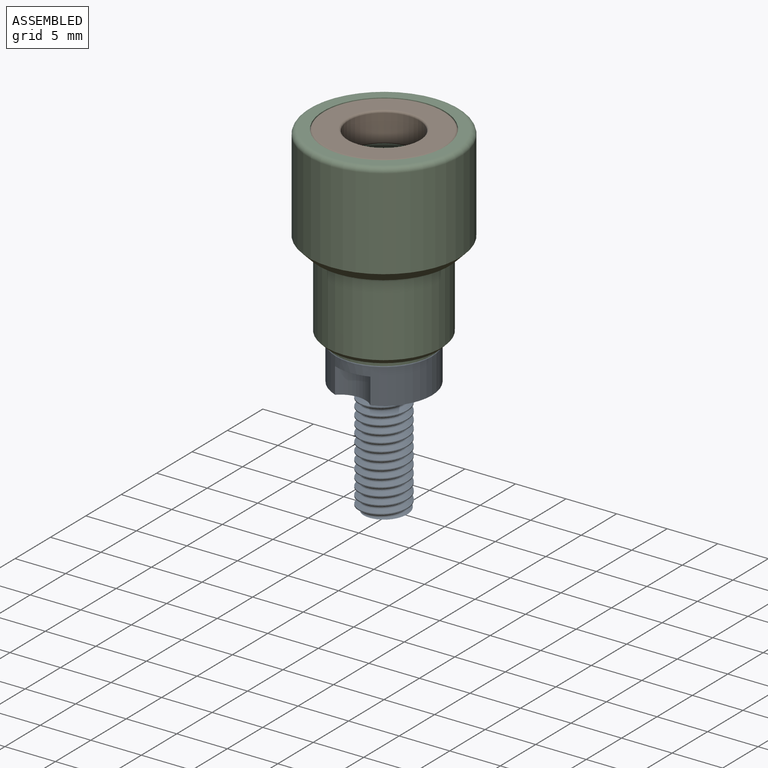
[diagram: assembled view]
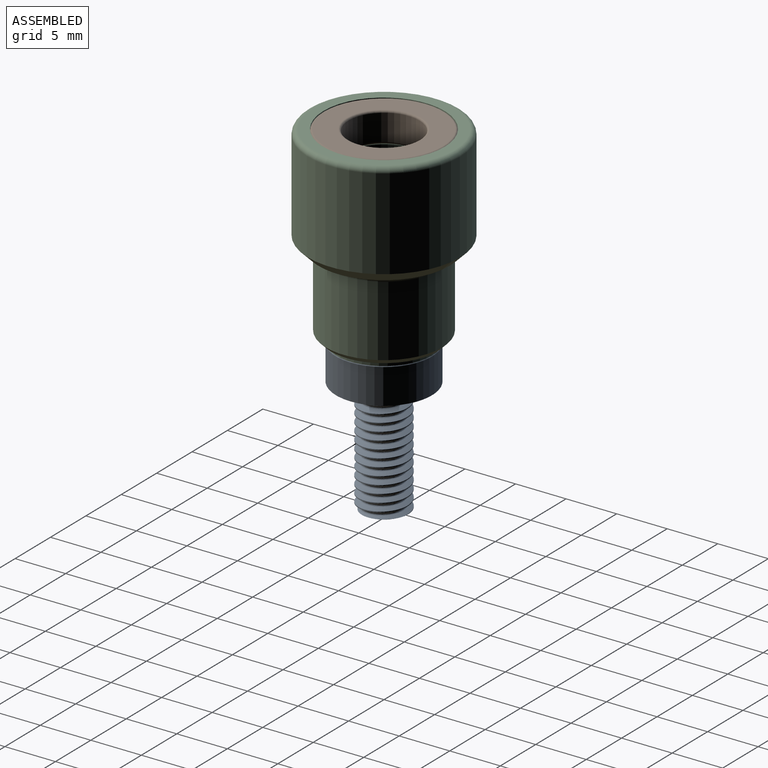
[diagram: assembled view, second angle]
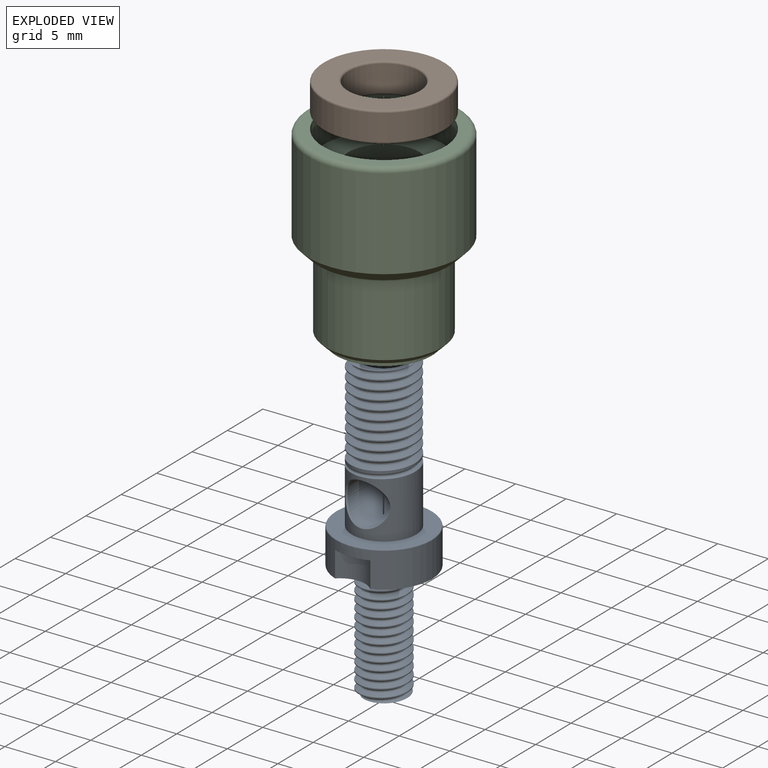
[diagram: exploded view]
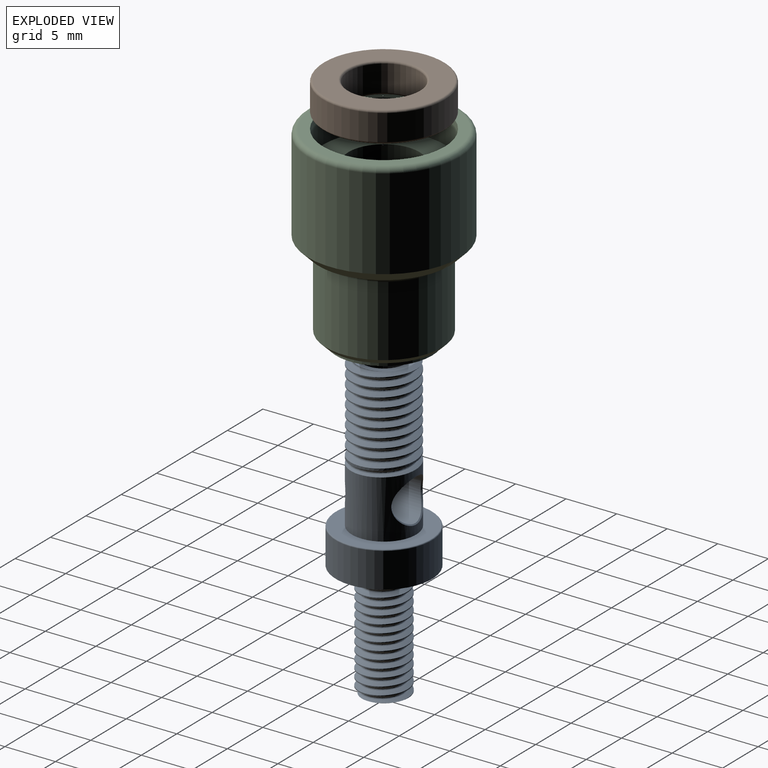
[diagram: exploded view, second angle]
ASSEMBLY  parts=3 mates=2
PART A: 36 faces, bbox 10.5x10.5x31 mm
  f0: cylinder r=4.75mm len=9.5mm, axis (0,0,1), area 93.8mm2, adj f14,f20,f34,f35
  f1: cylinder r=2.05mm len=6.15mm, axis (0,-1,0), area 79.2mm2, adj f30,f32,f33
  f2: cylinder r=3.17mm len=6.91mm, axis (0,0,-1), area 85.9mm2, adj f11,f15,f22,f23,f24,f27,f32,f33
  f3: cylinder r=3.17mm len=6.35mm, axis (0,0,-1), area 1.6mm2, adj f4,f26,f27,f29
  f4: cylinder r=3.17mm len=6.35mm, axis (0,0,-1), area 2.3mm2, adj f3,f5,f26,f27
  f5: cylinder r=3.17mm len=6.35mm, axis (0,0,-1), area 2.3mm2, adj f4,f6,f26,f27
  f6: cylinder r=3.17mm len=6.35mm, axis (0,0,-1), area 2.3mm2, adj f5,f7,f26,f27
  f7: cylinder r=3.17mm len=6.35mm, axis (0,0,-1), area 2.3mm2, adj f6,f8,f26,f27
  f8: cylinder r=3.17mm len=6.35mm, axis (0,0,-1), area 2.3mm2, adj f7,f9,f26,f27
  f9: cylinder r=3.17mm len=6.35mm, axis (0,0,-1), area 2.3mm2, adj f8,f10,f26,f27
  f10: cylinder r=3.17mm len=6.35mm, axis (0,0,-1), area 2.3mm2, adj f9,f11,f26,f27
  f11: cylinder r=3.17mm len=6.35mm, axis (0,0,-1), area 2.3mm2, adj f2,f10,f26,f27
  f12: plane 4.07x3.99mm, normal (0,0,-1), area 12.6mm2, adj f16,f17,f18,f19
  f13: cylinder r=2.41mm len=11.25mm, axis (0,0,-1), area 10.8mm2, adj f14,f17,f18,f19
  f14: plane 9.72x9.39mm, normal (0,0,-1), area 53.6mm2, adj f0,f13,f16,f17,f18,f34
  f15: plane 9.3x9.3mm, normal (0,0,1), area 36.3mm2, adj f2,f20
  f16: bspline ~11.98x4.58mm, area 39.2mm2, adj f12,f14,f17,f18
  f17: bspline ~12.16x5.57mm, area 98.1mm2, adj f12,f13,f14,f16,f19
  f18: bspline ~11.89x5.57mm, area 98.6mm2, adj f12,f13,f14,f16,f19
  f19: cone r=2.41mm half-angle=63.4deg, axis (0,0,1), area 2.5mm2, adj f12,f13,f17,f18
  f20: torus R=4.65mm, axis (0,0,1), area 4.7mm2, adj f0,f15
  f21: plane 5.48x5.4mm, normal (0,0,1), area 8.4mm2, adj f25,f26,f27,f29,f31
  f22: plane 0.28x0.09mm, normal (0,-1,-0.01), area 0mm2, adj f2,f23,f24,f28
  f23: bspline ~7.05x6.85mm, area 5.8mm2, adj f2,f22,f26,f28
  f24: bspline ~7.06x6.85mm, area 5.8mm2, adj f2,f22,f27,f28
  f25: bspline ~8.99x6.2mm, area 40.3mm2, adj f21,f26,f27,f28
  f26: bspline ~8.9x7.33mm, area 94.8mm2, adj f3,f4,f5,f6,f7,f8,f9,f10
  f27: bspline ~9.2x7.33mm, area 100.8mm2, adj f2,f3,f4,f5,f6,f7,f8,f9
  f28: bspline ~6.07x5.86mm, area 4.6mm2, adj f22,f23,f24,f25
  f29: cone r=3.17mm half-angle=63.4deg, axis (0,0,-1), area 3.8mm2, adj f3,f21,f26,f27
  f30: cylinder r=2.05mm len=11.85mm, axis (0,0,1), area 152.6mm2, adj f1,f31
  f31: cone r=2.05mm half-angle=45deg, axis (0,0,1), area 1.9mm2, adj f21,f30
  f32: bspline ~4.44x4.3mm, area 2.3mm2, adj f1,f2
  f33: bspline ~4.44x4.3mm, area 2.3mm2, adj f1,f2
  f34: cylinder r=2.5mm len=3.5mm, axis (0,0,-1), area 9.9mm2, adj f0,f14,f35
  f35: plane 3.5x1.05mm, normal (0,0,-1), area 2.5mm2, adj f0,f34
PART B: 8 faces, bbox 13x13x3 mm
  f0: plane 11.6x11.6mm, normal (0,0,1), area 62.7mm2, adj f4,f5
  f1: cylinder r=3.5mm len=7mm, axis (0,0,-1), area 57.2mm2, adj f5,f6
  f2: cylinder r=6mm len=12mm, axis (0,0,-1), area 98mm2, adj f4,f7
  f3: plane 11.6x11.6mm, normal (0,0,-1), area 62.7mm2, adj f6,f7
  f4: torus R=5.8mm, axis (0,0,1), area 11.7mm2, adj f0,f2
  f5: torus R=3.7mm, axis (0,0,1), area 7.1mm2, adj f0,f1
  f6: torus R=3.7mm, axis (0,0,1), area 7.1mm2, adj f1,f3
  f7: torus R=5.8mm, axis (0,0,1), area 11.7mm2, adj f2,f3
PART C: 23 faces, bbox 16.5x16.5x19.3 mm
  f0: cylinder r=3.5mm len=7mm, axis (0,0,1), area 153.9mm2, adj f1,f22
  f1: plane 7.27x7.27mm, normal (0,0,1), area 11.2mm2, adj f0,f15,f16,f17,f20
  f2: cylinder r=4.75mm len=9.5mm, axis (0,0,-1), area 14.9mm2, adj f3,f5
  f3: plane 9.5x9.5mm, normal (0,0,-1), area 32.4mm2, adj f2,f13
  f4: cylinder r=5.75mm len=11.5mm, axis (0,0,-1), area 252.9mm2, adj f9,f11
  f5: plane 10.5x10.5mm, normal (0,0,-1), area 15.7mm2, adj f2,f9
  f6: cylinder r=7.5mm len=15mm, axis (0,0,-1), area 424.1mm2, adj f10,f12
  f7: plane 14x14mm, normal (0,0,1), area 40.8mm2, adj f12,f21
  f8: plane 13x13mm, normal (0,0,-1), area 10mm2, adj f10,f11
  f9: cone r=5.75mm half-angle=45deg, axis (0,0,1), area 24.4mm2, adj f4,f5
  f10: cone r=7.5mm half-angle=45deg, axis (0,0,1), area 62.2mm2, adj f6,f8
  f11: torus R=6.25mm, axis (0,0,1), area 29.3mm2, adj f4,f8
  f12: torus R=7mm, axis (0,0,1), area 36.1mm2, adj f6,f7
  f13: cylinder r=3.5mm len=7.03mm, axis (0,0,-1), area 154.5mm2, adj f3,f14
  f14: cone r=3.52mm half-angle=45deg, axis (0,0,-1), area 9.6mm2, adj f13,f18,f19
  f15: bspline ~7.42x6.43mm, area 19.2mm2, adj f1,f17,f18,f19,f20
  f16: bspline ~7.42x6.43mm, area 19.2mm2, adj f1,f17,f18,f19,f20
  f17: bspline ~7.51x6.51mm, area 4.9mm2, adj f1,f15,f16,f18
  f18: plane 3.14x1.26mm, normal (0,0,1), area 0.2mm2, adj f14,f15,f16,f17
  f19: plane 6.58x6.51mm, normal (0,0,-1), area 4.6mm2, adj f14,f15,f16,f20
  f20: cylinder r=2.72mm len=5.44mm, axis (0,0,-1), area 7.1mm2, adj f1,f15,f16,f19
  f21: cylinder r=6mm len=12mm, axis (0,0,1), area 113.1mm2, adj f7,f22
  f22: plane 12x12mm, normal (0,0,1), area 74.6mm2, adj f0,f21
PLACE A at identity fixed
PLACE B rot(axis=(0,0,-1),90deg) t=(0,17.52,0)mm
PLACE C rot(axis=(0,0,-1),90deg) t=(0,17.52,0)mm
MATE cylindrical A.f0 <-> C.f0  axis (0,0,1) through (0,0,15)mm
MATE fastened B.f1 <-> C.f0  axis (0,0,-1) through (0,0,31)mm
